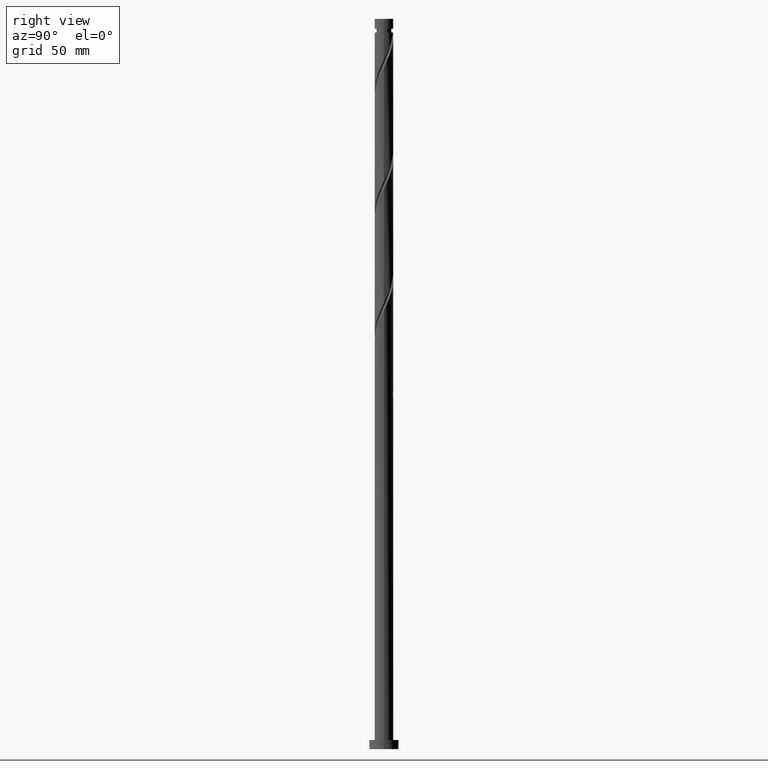
[diagram: clean part render]
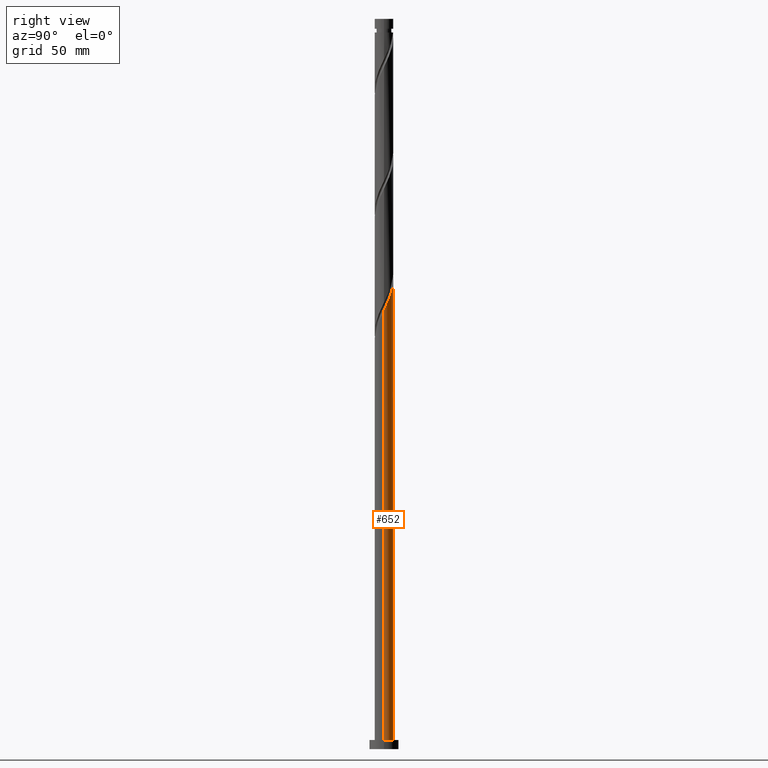
[diagram: same view with one face highlighted and labeled with its STEP entity id]
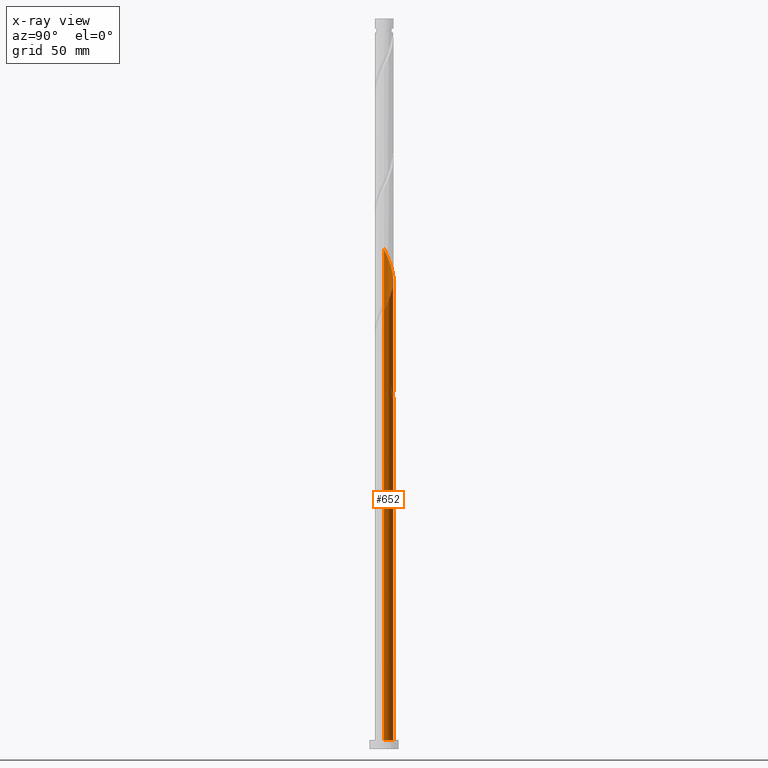
[diagram: x-ray of the same camera — body ghosted, the highlighted face saturated]
A machine part, right view. The second image highlights one B-rep face of the part: STEP entity #652.
The next image is the same camera in x-ray: the body ghosted, the highlighted face saturated — about 0% of this face is hidden behind the body in this view.
In plain terms, the highlighted cylindrical surface (edge-blend (fillet) strip) has radius 5.1 mm, axis along (-0, -0, -1).
Its self-contained STEP definition (entity closure, byte-faithful):
#25 = CARTESIAN_POINT ( 'NONE',  ( -2.031852096560608611, 4.677774797668475593, 194.7439656150929466 ) ) ;
#28 = CARTESIAN_POINT ( 'NONE',  ( -4.175984872295892991, 2.976319912643616838, 204.7439656150929181 ) ) ;
#63 = CARTESIAN_POINT ( 'NONE',  ( -5.100000000000012967, 0.2905660609767809488, 206.4573755066313936 ) ) ;
#84 = CARTESIAN_POINT ( 'NONE',  ( -4.121098741290865952, 3.051864191043565544, 266.9661878373152604 ) ) ;
#99 = EDGE_CURVE ( 'NONE', #986, #1181, #1964, .T. ) ;
#101 = CARTESIAN_POINT ( 'NONE',  ( 4.703541288989208979, 2.043044105940178046, 244.7439656150929181 ) ) ;
#110 = CARTESIAN_POINT ( 'NONE',  ( 2.604373641281815921, 4.417529605179759677, 251.4106322817596890 ) ) ;
#131 = ORIENTED_EDGE ( 'NONE', *, *, #731, .T. ) ;
#135 = VERTEX_POINT ( 'NONE', #259 ) ;
#138 = CARTESIAN_POINT ( 'NONE',  ( -5.099999999999998757, 0.2440043963624277668, 210.8053047774947686 ) ) ;
#165 = CARTESIAN_POINT ( 'NONE',  ( -5.100000000000010303, 8.924204006137095080E-15, 273.7296334826825159 ) ) ;
#205 = CARTESIAN_POINT ( 'NONE',  ( -0.04643316485371556945, 5.099788619266650613, 194.7439656150929750 ) ) ;
#211 = CARTESIAN_POINT ( 'NONE',  ( -2.116689710232770416, 4.640002658468494801, 199.1884100595374036 ) ) ;
#253 = CARTESIAN_POINT ( 'NONE',  ( -0.4895762179909013967, 5.104668941549578953, 258.0772989484262894 ) ) ;
#259 = CARTESIAN_POINT ( 'NONE',  ( 5.100000000000010303, 3.617516531800965792E-15, 240.3963001493492300 ) ) ;
#260 = VERTEX_POINT ( 'NONE', #936 ) ;
#262 = CARTESIAN_POINT ( 'NONE',  ( -5.100000000000009415, 0.2905660609768181968, 273.1240421732979371 ) ) ;
#300 = CARTESIAN_POINT ( 'NONE',  ( 5.100000000000001421, 6.245698675651501825E-16, 400.0000000000000000 ) ) ;
#310 = EDGE_CURVE ( 'NONE', #260, #449, #1583, .T. ) ;
#324 = CARTESIAN_POINT ( 'NONE',  ( -1.014887185848756257, 4.998000000000008214, 192.5217433928706896 ) ) ;
#325 =( BOUNDED_CURVE ( )  B_SPLINE_CURVE ( 2, ( #685, #882, #398, #1045, #422, #101, #1523, #722, #1816, #1968, #1800, #110, #706, #1367, #1959, #569, #1206, #253, #711, #1826, #1195, #1491, #1666, #415, #1658, #84, #1055, #1026, #1652, #1951, #1643, #262, #860 ),
 .UNSPECIFIED., .F., .T. ) 
 B_SPLINE_CURVE_WITH_KNOTS ( ( 3, 2, 2, 2, 2, 2, 2, 2, 2, 2, 2, 2, 2, 2, 2, 2, 3 ),
 ( 0.1795286012773115447, 0.1833333333333333481, 0.1916666666666666519, 0.1999999999999999556, 0.2083333333333333703, 0.2166666666666666741, 0.2249999999999999778, 0.2333333333333332815, 0.2416666666666666963, 0.2500000000000000000, 0.2583333333333333037, 0.2666666666666667185, 0.2750000000000000222, 0.2833333333333333259, 0.2916666666666666297, 0.3000000000000000444, 0.3045286012773112949 ),
 .UNSPECIFIED. ) 
 CURVE ( )  GEOMETRIC_REPRESENTATION_ITEM ( )  RATIONAL_B_SPLINE_CURVE ( ( 0.9066196499552303667, 0.9068171577856432020, 0.9090909090909421453, 0.9041108139711903080, 0.9090909090909421453, 0.9041108139711903080, 0.9090909090909421453, 0.9041108139711903080, 0.9090909090909421453, 0.9041108139711903080, 0.9090909090909421453, 0.9041108139711903080, 0.9090909090909421453, 0.9041108139711903080, 0.9090909090909421453, 0.9041108139711903080, 0.9090909090909421453, 0.9041108139711903080, 0.9090909090909421453, 0.9041108139711903080, 0.9090909090909421453, 0.9041108139711903080, 0.9090909090909421453, 0.9041108139711903080, 0.9090909090909421453, 0.9041108139711903080, 0.9090909090909421453, 0.9041108139711903080, 0.9090909090909421453, 0.9041108139711903080, 0.9090909090909421453, 0.9063845652764893623, 0.9066196499552303667 ) ) 
 REPRESENTATION_ITEM ( '' )  );
#328 = CARTESIAN_POINT ( 'NONE',  ( -1.014887185848756257, 4.998000000000008214, 192.5217433928706896 ) ) ;
#362 = CARTESIAN_POINT ( 'NONE',  ( -2.604373641281807039, 4.417529605179755237, 200.2995211706484895 ) ) ;
#398 = CARTESIAN_POINT ( 'NONE',  ( 5.076705030977442412, 0.4868942682435424829, 241.4106322817595469 ) ) ;
#415 = CARTESIAN_POINT ( 'NONE',  ( -3.396524602074726396, 3.841998243563403914, 264.7439656150929750 ) ) ;
#422 = CARTESIAN_POINT ( 'NONE',  ( 4.864535835123834140, 1.531760787067009799, 243.6328545039818039 ) ) ;
#440 = CARTESIAN_POINT ( 'NONE',  ( -4.703541288989194769, 2.043044105940179822, 206.9661878373151467 ) ) ;
#449 = VERTEX_POINT ( 'NONE', #681 ) ;
#492 = EDGE_CURVE ( 'NONE', #135, #744, #325, .T. ) ;
#495 = CARTESIAN_POINT ( 'NONE',  ( 0.000000000000000000, 0.000000000000000000, 5.000000000000000000 ) ) ;
#542 = LINE ( 'NONE', #758, #1884 ) ;
#543 = FACE_OUTER_BOUND ( 'NONE', #2013, .T. ) ;
#547 = LINE ( 'NONE', #844, #775 ) ;
#569 = CARTESIAN_POINT ( 'NONE',  ( 0.5824425476983406957, 5.094908296983747142, 255.8550767262041177 ) ) ;
#590 = CARTESIAN_POINT ( 'NONE',  ( -5.025530381258454860, 1.020477468193841775, 209.1884100595373752 ) ) ;
#617 = CARTESIAN_POINT ( 'NONE',  ( -5.100000000000010303, -1.955252737023001321E-14, 207.0629668160159440 ) ) ;
#651 = CARTESIAN_POINT ( 'NONE',  ( -4.121098741290865952, 3.051864191043565544, 200.2995211706485179 ) ) ;
#652 = ADVANCED_FACE ( 'NONE', ( #543 ), #1188, .T. ) ;
#681 = CARTESIAN_POINT ( 'NONE',  ( -5.100000000000001421, 0.000000000000000000, 5.000000000000000000 ) ) ;
#685 = CARTESIAN_POINT ( 'NONE',  ( 5.100000000000010303, 3.617516531800965792E-15, 240.3963001493492300 ) ) ;
#697 = DIRECTION ( 'NONE',  ( 0.000000000000000000, 0.000000000000000000, 1.000000000000000000 ) ) ;
#706 = CARTESIAN_POINT ( 'NONE',  ( 2.116689710232775745, 4.640002658468502794, 252.5217433928706896 ) ) ;
#711 = CARTESIAN_POINT ( 'NONE',  ( -1.014887185848756035, 4.998000000000008214, 259.1884100595373752 ) ) ;
#722 = CARTESIAN_POINT ( 'NONE',  ( 4.175984872295905426, 2.976319912643619947, 246.9661878373152604 ) ) ;
#731 = EDGE_CURVE ( 'NONE', #135, #260, #1879, .T. ) ;
#741 = CARTESIAN_POINT ( 'NONE',  ( -5.099999999999999645, -6.517509123410059360E-15, 211.3138533030588349 ) ) ;
#744 = VERTEX_POINT ( 'NONE', #165 ) ;
#758 = CARTESIAN_POINT ( 'NONE',  ( -5.100000000000001421, 0.000000000000000000, 400.0000000000000000 ) ) ;
#775 = VECTOR ( 'NONE', #1916, 1000.000000000000000 ) ;
#796 = CARTESIAN_POINT ( 'NONE',  ( -1.540198153706609618, 4.891331058450441915, 193.6328545039818323 ) ) ;
#827 = CARTESIAN_POINT ( 'NONE',  ( 0.4895762179909056155, 5.104668941549565631, 193.6328545039818039 ) ) ;
#844 = CARTESIAN_POINT ( 'NONE',  ( -5.100000000000001421, 0.000000000000000000, 400.0000000000000000 ) ) ;
#860 = CARTESIAN_POINT ( 'NONE',  ( -5.100000000000010303, 8.924204006137096658E-15, 273.7296334826825159 ) ) ;
#876 =( BOUNDED_CURVE ( )  B_SPLINE_CURVE ( 2, ( #741, #138, #1548, #590, #1383, #440, #1987, #28, #1471, #1606, #1132, #362, #211, #1891, #1579, #1907, #205, #827, #1461 ),
 .UNSPECIFIED., .F., .T. ) 
 B_SPLINE_CURVE_WITH_KNOTS ( ( 3, 2, 2, 2, 2, 2, 2, 2, 2, 3 ),
 ( 0.9295286012773115170, 0.9333333333333333481, 0.9416666666666666519, 0.9499999999999999556, 0.9583333333333333703, 0.9666666666666666741, 0.9749999999999999778, 0.9833333333333332815, 0.9916666666666666963, 1.000000000000000000 ),
 .UNSPECIFIED. ) 
 CURVE ( )  GEOMETRIC_REPRESENTATION_ITEM ( )  RATIONAL_B_SPLINE_CURVE ( ( 0.9066196499552229282, 0.9068171577856356524, 0.9090909090909344847, 0.9041108139711828695, 0.9090909090909344847, 0.9041108139711828695, 0.9090909090909344847, 0.9041108139711828695, 0.9090909090909344847, 0.9041108139711828695, 0.9090909090909344847, 0.9041108139711828695, 0.9090909090909344847, 0.9041108139711828695, 0.9090909090909344847, 0.9041108139711828695, 0.9090909090909344847, 0.9041108139711828695, 0.9090909090909344847 ) ) 
 REPRESENTATION_ITEM ( '' )  );
#881 = VERTEX_POINT ( 'NONE', #617 ) ;
#882 = CARTESIAN_POINT ( 'NONE',  ( 5.100000000000011191, 0.2440043963624251300, 240.9048486749132678 ) ) ;
#887 = EDGE_CURVE ( 'NONE', #925, #1181, #876, .T. ) ;
#925 = VERTEX_POINT ( 'NONE', #1730 ) ;
#927 = CARTESIAN_POINT ( 'NONE',  ( -3.758811671682796618, 3.446931217303483397, 199.1884100595373468 ) ) ;
#936 = CARTESIAN_POINT ( 'NONE',  ( 5.100000000000001421, 6.245698675651501825E-16, 5.000000000000000000 ) ) ;
#986 = VERTEX_POINT ( 'NONE', #328 ) ;
#1019 = DIRECTION ( 'NONE',  ( -0.000000000000000000, -0.000000000000000000, -1.000000000000000000 ) ) ;
#1025 = AXIS2_PLACEMENT_3D ( 'NONE', #1234, #1527, #1512 ) ;
#1026 = CARTESIAN_POINT ( 'NONE',  ( -4.665561090286807655, 2.128349028905955898, 269.1884100595373752 ) ) ;
#1045 = CARTESIAN_POINT ( 'NONE',  ( 5.025530381258464629, 1.020477468193841997, 242.5217433928707464 ) ) ;
#1055 = CARTESIAN_POINT ( 'NONE',  ( -4.393329915788834583, 2.590106609974760055, 268.0772989484261757 ) ) ;
#1075 = DIRECTION ( 'NONE',  ( -0.000000000000000000, -0.000000000000000000, -1.000000000000000000 ) ) ;
#1084 = ORIENTED_EDGE ( 'NONE', *, *, #1414, .F. ) ;
#1088 = ORIENTED_EDGE ( 'NONE', *, *, #1589, .F. ) ;
#1090 = DIRECTION ( 'NONE',  ( -0.000000000000000000, -0.000000000000000000, -1.000000000000000000 ) ) ;
#1095 = ORIENTED_EDGE ( 'NONE', *, *, #99, .T. ) ;
#1125 = CARTESIAN_POINT ( 'NONE',  ( -4.835838561039008887, 1.620081915079681245, 203.6328545039818039 ) ) ;
#1132 = CARTESIAN_POINT ( 'NONE',  ( -3.035145759683201661, 4.098522931188391283, 201.4106322817596038 ) ) ;
#1135 = ORIENTED_EDGE ( 'NONE', *, *, #310, .T. ) ;
#1153 = AXIS2_PLACEMENT_3D ( 'NONE', #1789, #1019, #1636 ) ;
#1164 = CARTESIAN_POINT ( 'NONE',  ( -5.006116031791213672, 1.111814801253408147, 204.7439656150930034 ) ) ;
#1181 = VERTEX_POINT ( 'NONE', #1347 ) ;
#1188 = CYLINDRICAL_SURFACE ( 'NONE', #1153, 5.100000000000001421 ) ;
#1195 = CARTESIAN_POINT ( 'NONE',  ( -2.031852096560608611, 4.677774797668475593, 261.4106322817595469 ) ) ;
#1202 = EDGE_CURVE ( 'NONE', #744, #925, #542, .T. ) ;
#1206 = CARTESIAN_POINT ( 'NONE',  ( 0.04643316485371956626, 5.099788619266663048, 256.9661878373151467 ) ) ;
#1225 = ORIENTED_EDGE ( 'NONE', *, *, #492, .F. ) ;
#1234 = CARTESIAN_POINT ( 'NONE',  ( 0.000000000000000000, 0.000000000000000000, 192.5217433928707180 ) ) ;
#1244 = CARTESIAN_POINT ( 'NONE',  ( -2.960015320744666223, 4.153108390224957702, 196.9661878373150614 ) ) ;
#1266 = AXIS2_PLACEMENT_3D ( 'NONE', #495, #697, #1441 ) ;
#1281 = CARTESIAN_POINT ( 'NONE',  ( -4.393329915788834583, 2.590106609974760055, 201.4106322817596322 ) ) ;
#1344 = CARTESIAN_POINT ( 'NONE',  ( -5.100000000000010303, -1.955252737023001321E-14, 207.0629668160159440 ) ) ;
#1347 = CARTESIAN_POINT ( 'NONE',  ( 1.014887185848757811, 4.998000000000000220, 192.5217433928706896 ) ) ;
#1367 = CARTESIAN_POINT ( 'NONE',  ( 1.629005779183740232, 4.862475711757246799, 253.6328545039818323 ) ) ;
#1383 = CARTESIAN_POINT ( 'NONE',  ( -4.864535835123822594, 1.531760787067011131, 208.0772989484262609 ) ) ;
#1414 = EDGE_CURVE ( 'NONE', #986, #881, #1988, .T. ) ;
#1434 = CARTESIAN_POINT ( 'NONE',  ( -3.396524602074726396, 3.841998243563403914, 198.0772989484262325 ) ) ;
#1441 = DIRECTION ( 'NONE',  ( 1.000000000000000000, 0.000000000000000000, 0.000000000000000000 ) ) ;
#1461 = CARTESIAN_POINT ( 'NONE',  ( 1.014887185848757811, 4.998000000000000220, 192.5217433928706612 ) ) ;
#1471 = CARTESIAN_POINT ( 'NONE',  ( -3.820951375190244637, 3.377918084920321196, 203.6328545039818607 ) ) ;
#1491 = CARTESIAN_POINT ( 'NONE',  ( -2.523506039414608271, 4.464218536886512823, 262.5217433928707464 ) ) ;
#1512 = DIRECTION ( 'NONE',  ( -1.000000000000000000, 0.000000000000000000, 0.000000000000000000 ) ) ;
#1523 = CARTESIAN_POINT ( 'NONE',  ( 4.439763080642554094, 2.509682009291899440, 245.8550767262040324 ) ) ;
#1527 = DIRECTION ( 'NONE',  ( 0.000000000000000000, -0.000000000000000000, -1.000000000000000000 ) ) ;
#1548 = CARTESIAN_POINT ( 'NONE',  ( -5.076705030977432642, 0.4868942682435472569, 210.2995211706484326 ) ) ;
#1579 = CARTESIAN_POINT ( 'NONE',  ( -1.105724163441035079, 4.978692004370486757, 196.9661878373151467 ) ) ;
#1583 = CIRCLE ( 'NONE', #1266, 5.100000000000001421 ) ;
#1589 = EDGE_CURVE ( 'NONE', #881, #449, #547, .T. ) ;
#1595 = CARTESIAN_POINT ( 'NONE',  ( -2.523506039414608271, 4.464218536886512823, 195.8550767262041177 ) ) ;
#1606 = CARTESIAN_POINT ( 'NONE',  ( -3.465917878084596726, 3.779516257197027773, 202.5217433928707464 ) ) ;
#1636 = DIRECTION ( 'NONE',  ( -1.000000000000000000, 0.000000000000000000, 0.000000000000000000 ) ) ;
#1643 = CARTESIAN_POINT ( 'NONE',  ( -5.066997856243816045, 0.5792518664800782036, 272.5217433928707464 ) ) ;
#1652 = CARTESIAN_POINT ( 'NONE',  ( -4.835838561039008887, 1.620081915079681245, 270.2995211706484611 ) ) ;
#1658 = CARTESIAN_POINT ( 'NONE',  ( -3.758811671682796618, 3.446931217303483397, 265.8550767262040040 ) ) ;
#1666 = CARTESIAN_POINT ( 'NONE',  ( -2.960015320744666223, 4.153108390224957702, 263.6328545039817755 ) ) ;
#1730 = CARTESIAN_POINT ( 'NONE',  ( -5.099999999999999645, -6.517509123410059360E-15, 211.3138533030588633 ) ) ;
#1770 = CARTESIAN_POINT ( 'NONE',  ( -5.066997856243816045, 0.5792518664800782036, 205.8550767262040040 ) ) ;
#1778 = ORIENTED_EDGE ( 'NONE', *, *, #887, .F. ) ;
#1789 = CARTESIAN_POINT ( 'NONE',  ( 0.000000000000000000, 0.000000000000000000, 400.0000000000000000 ) ) ;
#1800 = CARTESIAN_POINT ( 'NONE',  ( 3.035145759683210098, 4.098522931188395724, 250.2995211706484042 ) ) ;
#1816 = CARTESIAN_POINT ( 'NONE',  ( 3.820951375190254407, 3.377918084920323416, 248.0772989484262609 ) ) ;
#1826 = CARTESIAN_POINT ( 'NONE',  ( -1.540198153706609618, 4.891331058450441915, 260.2995211706485179 ) ) ;
#1833 = ORIENTED_EDGE ( 'NONE', *, *, #1202, .F. ) ;
#1879 = LINE ( 'NONE', #300, #2009 ) ;
#1884 = VECTOR ( 'NONE', #1075, 1000.000000000000000 ) ;
#1886 = CARTESIAN_POINT ( 'NONE',  ( -4.665561090286807655, 2.128349028905955898, 202.5217433928707464 ) ) ;
#1891 = CARTESIAN_POINT ( 'NONE',  ( -1.629005779183733349, 4.862475711757238805, 198.0772989484262609 ) ) ;
#1907 = CARTESIAN_POINT ( 'NONE',  ( -0.5824425476983373651, 5.094908296983734708, 195.8550767262040608 ) ) ;
#1916 = DIRECTION ( 'NONE',  ( -0.000000000000000000, -0.000000000000000000, -1.000000000000000000 ) ) ;
#1951 = CARTESIAN_POINT ( 'NONE',  ( -5.006116031791213672, 1.111814801253408147, 271.4106322817596038 ) ) ;
#1959 = CARTESIAN_POINT ( 'NONE',  ( 1.105724163441041963, 4.978692004370493862, 254.7439656150929466 ) ) ;
#1964 = CIRCLE ( 'NONE', #1025, 5.100000000000001421 ) ;
#1968 = CARTESIAN_POINT ( 'NONE',  ( 3.465917878084604720, 3.779516257197033546, 249.1884100595374036 ) ) ;
#1987 = CARTESIAN_POINT ( 'NONE',  ( -4.439763080642545212, 2.509682009291897664, 205.8550767262040324 ) ) ;
#1988 =( BOUNDED_CURVE ( )  B_SPLINE_CURVE ( 2, ( #324, #796, #25, #1595, #1244, #1434, #927, #651, #1281, #1886, #1125, #1164, #1770, #63, #1344 ),
 .UNSPECIFIED., .F., .T. ) 
 B_SPLINE_CURVE_WITH_KNOTS ( ( 3, 2, 2, 2, 2, 2, 2, 3 ),
 ( 0.000000000000000000, 0.008333333333333303727, 0.01666666666666671848, 0.02500000000000002220, 0.03333333333333332593, 0.04166666666666662966, 0.05000000000000004441, 0.05452860127731187778 ),
 .UNSPECIFIED. ) 
 CURVE ( )  GEOMETRIC_REPRESENTATION_ITEM ( )  RATIONAL_B_SPLINE_CURVE ( ( 0.9090909090909421453, 0.9041108139711903080, 0.9090909090909421453, 0.9041108139711903080, 0.9090909090909421453, 0.9041108139711903080, 0.9090909090909421453, 0.9041108139711903080, 0.9090909090909421453, 0.9041108139711903080, 0.9090909090909421453, 0.9041108139711903080, 0.9090909090909421453, 0.9063845652764890293, 0.9066196499552304777 ) ) 
 REPRESENTATION_ITEM ( '' )  );
#2009 = VECTOR ( 'NONE', #1090, 1000.000000000000000 ) ;
#2013 = EDGE_LOOP ( 'NONE', ( #1225, #131, #1135, #1088, #1084, #1095, #1778, #1833 ) ) ;